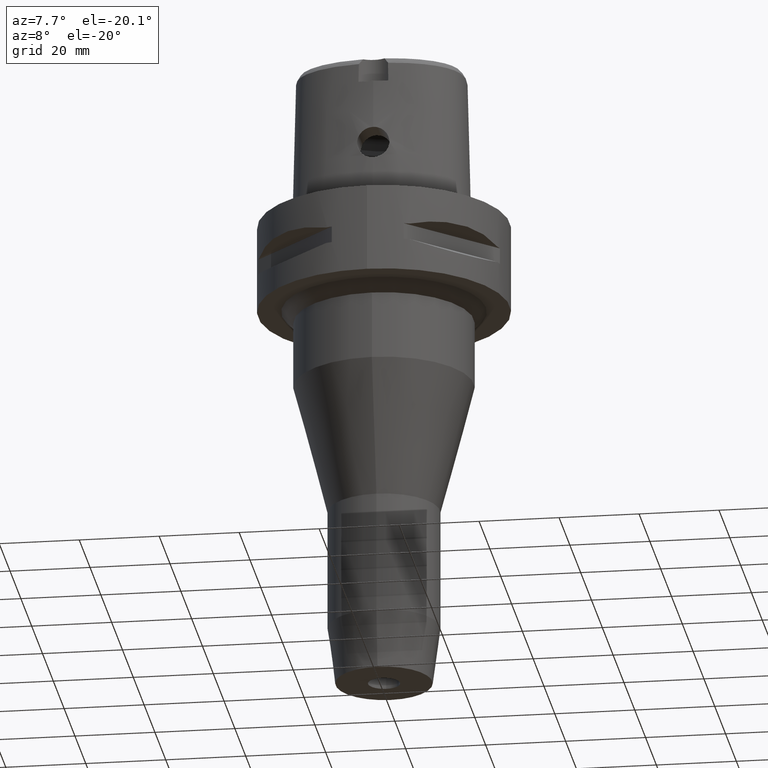
[diagram: clean part render]
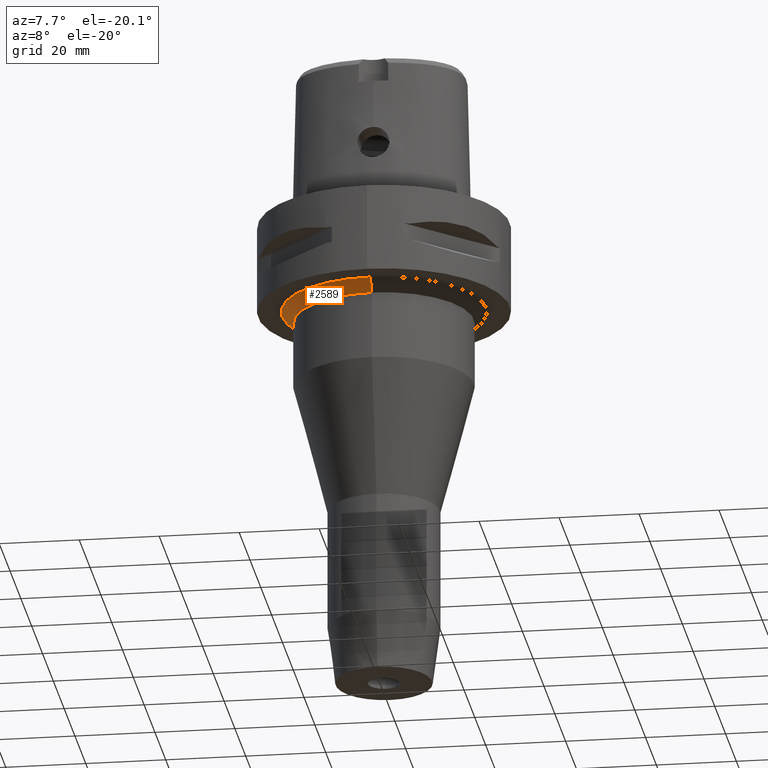
[diagram: same view with one face highlighted and labeled with its STEP entity id]
A machine part, auxiliary view. The second image highlights one B-rep face of the part: STEP entity #2589.
In plain terms, the highlighted conical surface has half-angle 45 deg.
Its self-contained STEP definition (entity closure, byte-faithful):
#558=CARTESIAN_POINT('',(0.E0,0.E0,-2.2E1));
#559=DIRECTION('',(0.E0,0.E0,-1.E0));
#560=DIRECTION('',(0.E0,-1.E0,0.E0));
#561=AXIS2_PLACEMENT_3D('',#558,#559,#560);
#574=DIRECTION('',(0.E0,7.071067811865E-1,-7.071067811865E-1));
#575=VECTOR('',#574,4.242640687119E0);
#576=CARTESIAN_POINT('',(0.E0,-2.55E1,-2.2E1));
#577=LINE('',#576,#575);
#581=CARTESIAN_POINT('',(0.E0,0.E0,-2.5E1));
#582=DIRECTION('',(0.E0,0.E0,-1.E0));
#583=DIRECTION('',(0.E0,-1.E0,0.E0));
#584=AXIS2_PLACEMENT_3D('',#581,#582,#583);
#589=DIRECTION('',(0.E0,-7.071067811865E-1,-7.071067811865E-1));
#590=VECTOR('',#589,4.242640687119E0);
#591=CARTESIAN_POINT('',(0.E0,2.55E1,-2.2E1));
#592=LINE('',#591,#590);
#1668=CARTESIAN_POINT('',(0.E0,-2.55E1,-2.2E1));
#1669=CARTESIAN_POINT('',(0.E0,2.55E1,-2.2E1));
#1670=VERTEX_POINT('',#1668);
#1671=VERTEX_POINT('',#1669);
#1672=CARTESIAN_POINT('',(0.E0,2.25E1,-2.5E1));
#1673=VERTEX_POINT('',#1672);
#1674=CARTESIAN_POINT('',(0.E0,-2.25E1,-2.5E1));
#1675=VERTEX_POINT('',#1674);
#2575=CARTESIAN_POINT('',(0.E0,0.E0,-2.35E1));
#2576=DIRECTION('',(0.E0,0.E0,1.E0));
#2577=DIRECTION('',(0.E0,1.E0,0.E0));
#2578=AXIS2_PLACEMENT_3D('',#2575,#2576,#2577);
#2579=CONICAL_SURFACE('',#2578,2.4E1,4.5E1);
#2581=ORIENTED_EDGE('',*,*,#2580,.F.);
#2582=ORIENTED_EDGE('',*,*,#2568,.F.);
#2584=ORIENTED_EDGE('',*,*,#2583,.T.);
#2586=ORIENTED_EDGE('',*,*,#2585,.T.);
#2587=EDGE_LOOP('',(#2581,#2582,#2584,#2586));
#2588=FACE_OUTER_BOUND('',#2587,.F.);
#562=CIRCLE('',#561,2.55E1);
#585=CIRCLE('',#584,2.25E1);
#2568=EDGE_CURVE('',#1670,#1671,#562,.T.);
#2580=EDGE_CURVE('',#1671,#1673,#592,.T.);
#2583=EDGE_CURVE('',#1670,#1675,#577,.T.);
#2585=EDGE_CURVE('',#1675,#1673,#585,.T.);
#2589=ADVANCED_FACE('',(#2588),#2579,.T.);